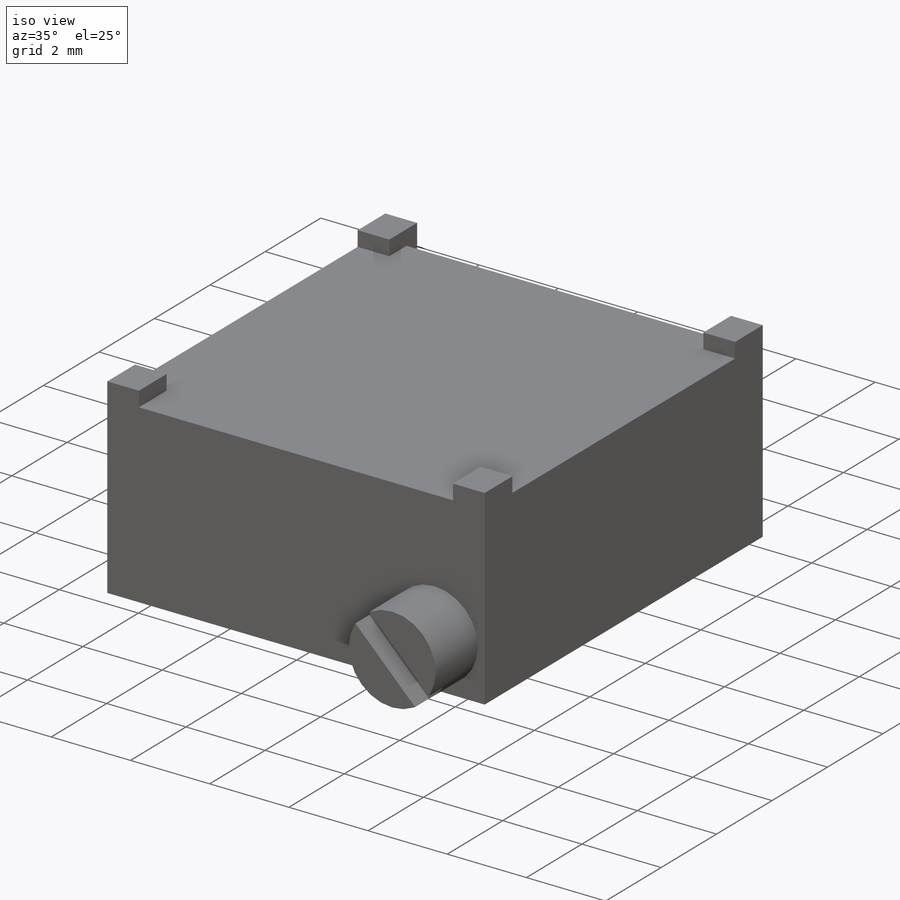
[diagram: iso view]
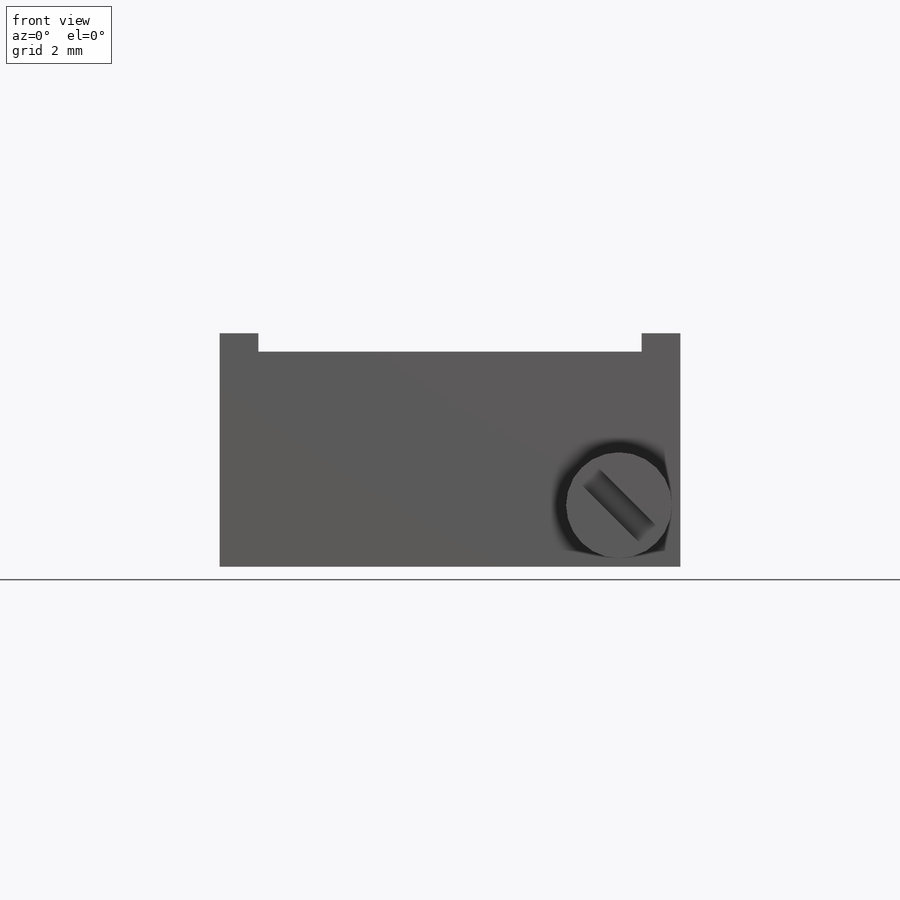
[diagram: front view]
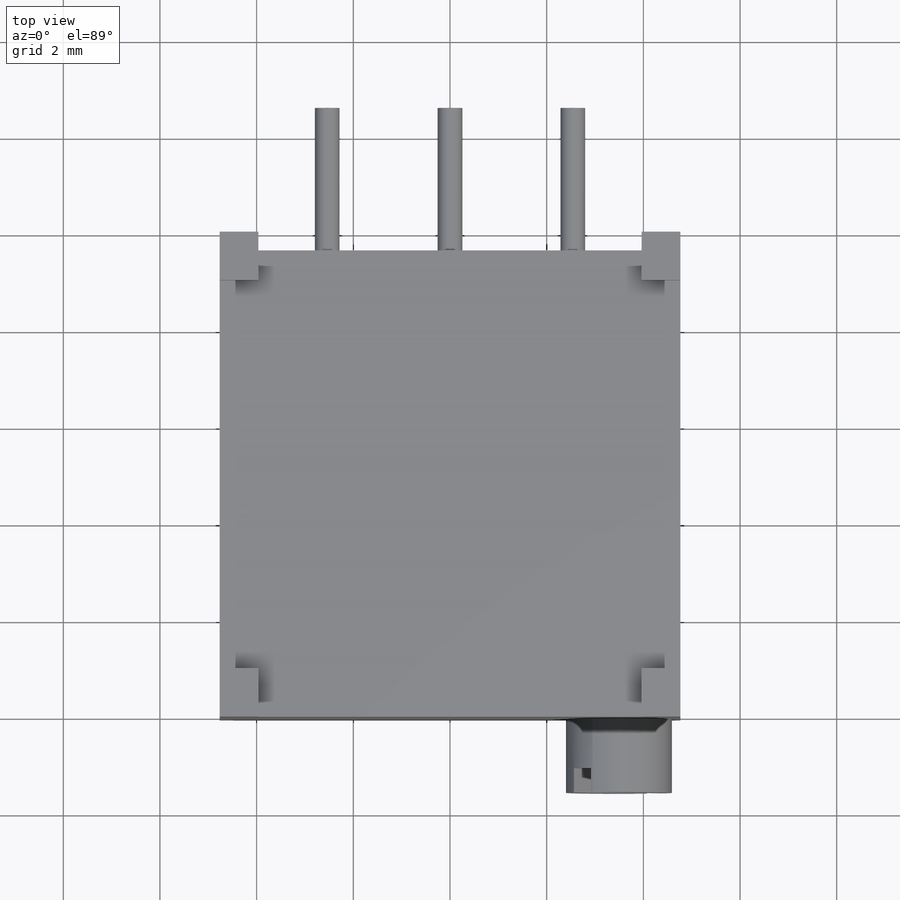
[diagram: top view]
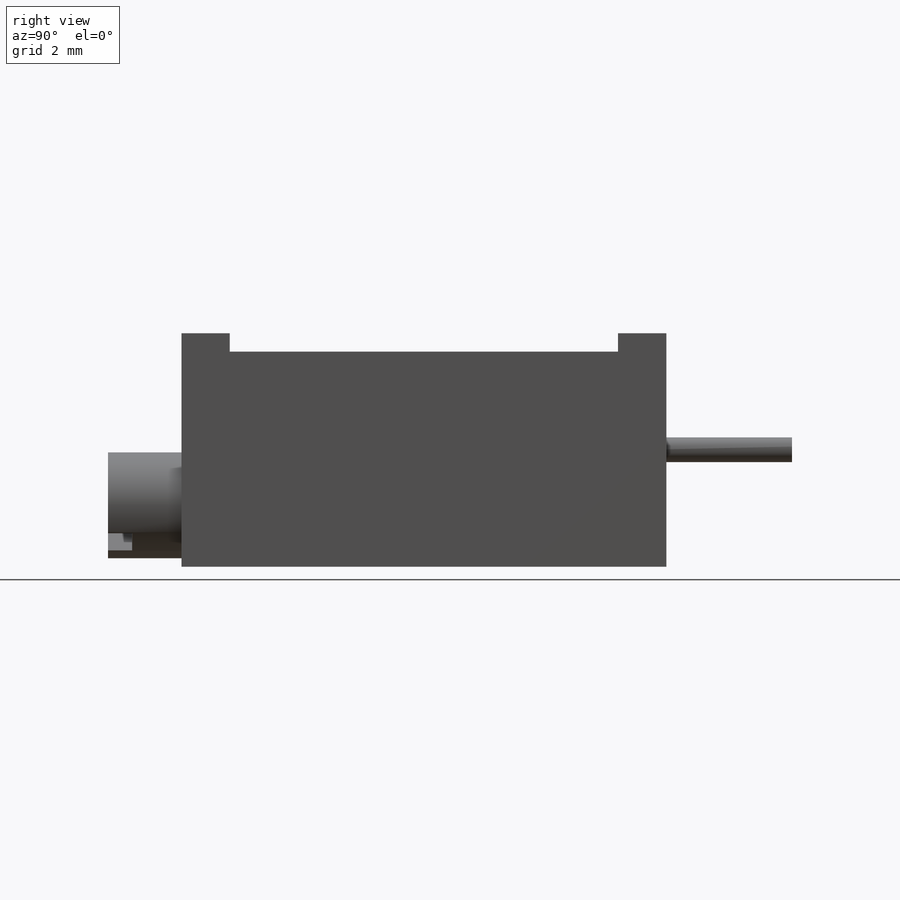
[diagram: right view]
SOLIDWORKS PART (.sldprt)
format: sldprt  version: not decoded by parser v0  size: 221,696 bytes
history: native  units: mm
features: sketch x6, plane x3, extrude x3, cut_extrude x3, material x1 (+9 scaffold rows collapsed)
feature tree (25):
  scaffold x9  (default folders/planes/origin — collapsed)
  material  "Material <não especificado>"
  plane  "Plano frontal"
  plane  "Plano superior"
  plane  "Plano direito"
  sketch  "Esboço1"  dims[D1=9.53mm D2=10.03mm]
  extrude  "Ressalto-extrusão1"  Depth=4.83mm
  sketch  "Esboço2"  dims[D1=0.38mm D2=0.8mm D3=0.8mm D4=1.0mm]
  cut_extrude  "Corte-extrusão1"  [1 undecoded]
  sketch  "Esboço3"  dims[D1=1.0mm D2=1.0mm]
  cut_extrude  "Corte-extrusão2"  Depth=0.38mm
  sketch  "Esboço4"  dims[D3=2.19mm D1=1.27mm D2=1.27mm]
  extrude  "Ressalto-extrusão2"  Depth=1.52mm
  sketch  "Esboço5"  dims[c1.D1=0.5mm c1.D2=~0.193398mm c1.D3=~2.155571mm c2.D2=~2.132159mm c3.D2=45.0deg]
  cut_extrude  "Corte-extrusão3"  Depth=0.5mm
  sketch  "Esboço6"  dims[D2=0.51mm D1=2.41mm D3=2.54mm D4=2.54mm]
  extrude  "Ressalto-extrusão3"  Depth=2.98mm
decode coverage: 11 of 12 modeling features carry decoded parameters
note: ~ marks probable driven/reference dimensions
note: 1 parameter value undecoded
note: suppression state not decoded; provenance and decode notes live in map.json
